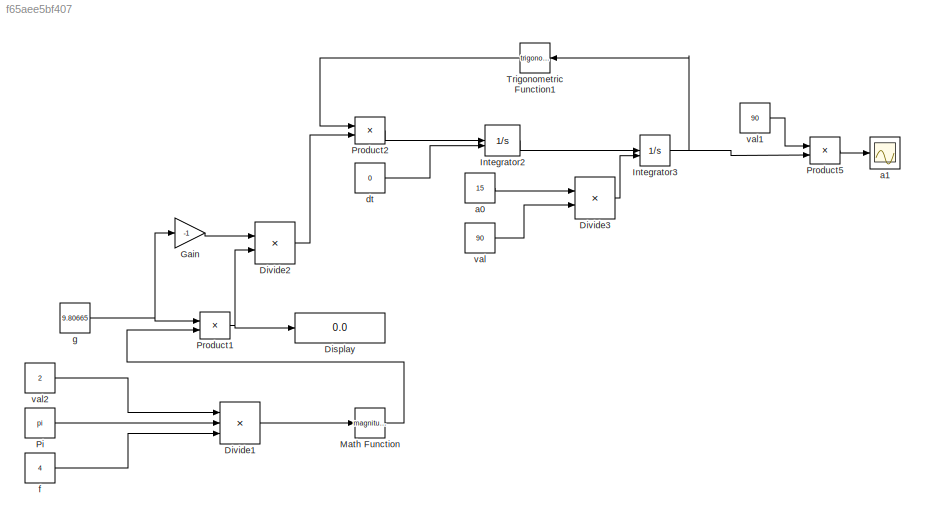
MODEL slx_f65aee5bf407
KIND model
CONFIG AbsTol = auto
CONFIG EnableMultiTasking = off
CONFIG FixedStep = auto
CONFIG MaxStep = 0.001
CONFIG MinStep = auto
CONFIG RelTol = 1e-3
CONFIG SampleTimeConstraint = Unconstrained
CONFIG SolverName = VariableStepAuto
CONFIG StartTime = 0.0
CONFIG StopTime = 10.0
BLOCK [Display] Display
  Decimation = 1
BLOCK [Product] Divide1
  Inputs = ///
BLOCK [Product] Divide2
  Inputs = */
BLOCK [Product] Divide3
  Inputs = */
BLOCK [Gain] Gain
  Gain = -1
BLOCK [Integrator] Integrator2
  InitialConditionSource = external
BLOCK [Integrator] Integrator3
  InitialConditionSource = external
BLOCK [Math] Math Function
  Operator = magnitude^2
BLOCK [Constant] Pi
  OutDataTypeStr = Inherit: Inherit via back propagation
  Value = pi
BLOCK [Product] Product1
BLOCK [Product] Product2
BLOCK [Product] Product5
BLOCK [Trigonometry] Trigonometric Function1
BLOCK [Constant] a0
  Value = 15
BLOCK [Scope] a1
  Floating = off
  NumInputPorts = 1
  ScopeSpecificationString = Simulink.scopes.TimeScopeBlockCfg('CurrentConfiguration', extmgr.ConfigurationSet(extmgr.Configuration('Core','General UI',true),extmgr.Configuration('Core','Source UI',true),extmgr.Configuration('Sources','WiredSimulink',true,'DataLoggingVariableName','ScopeData2'),extmgr.Configuration('Visuals','Time Domain',true,'SerializedDisplays',{struct('MinYLimReal','-91','MaxYLimReal','91','YLabelReal',''...<+1413ch>
BLOCK [Constant] dt
  Value = 0
BLOCK [Constant] f
  Value = 4
BLOCK [Constant] g
  Value = 9.80665
BLOCK [Constant] val
  Value = 90
BLOCK [Constant] val1
  Value = 90
BLOCK [Constant] val2
  Value = 2
LINE Divide1:1 -> Math Function:1
LINE Divide2:1 -> Product2:2
LINE Divide3:1 -> Integrator3:2
LINE Gain:1 -> Divide2:1
LINE Integrator2:1 -> Integrator3:1
NET Integrator3:1 -> Product5:2, Trigonometric Function1:1
LINE Math Function:1 -> Product1:2
LINE Pi:1 -> Divide1:2
NET Product1:1 -> Display:1, Divide2:2
LINE Product2:1 -> Integrator2:1
LINE Product5:1 -> a1:1
LINE Trigonometric Function1:1 -> Product2:1
LINE a0:1 -> Divide3:1
LINE dt:1 -> Integrator2:2
LINE f:1 -> Divide1:3
NET g:1 -> Gain:1, Product1:1
LINE val1:1 -> Product5:1
LINE val2:1 -> Divide1:1
LINE val:1 -> Divide3:2
note: NET lines group one-source signal fan-out (src -> all destinations, sorted); 1:1 wires keep LINE
